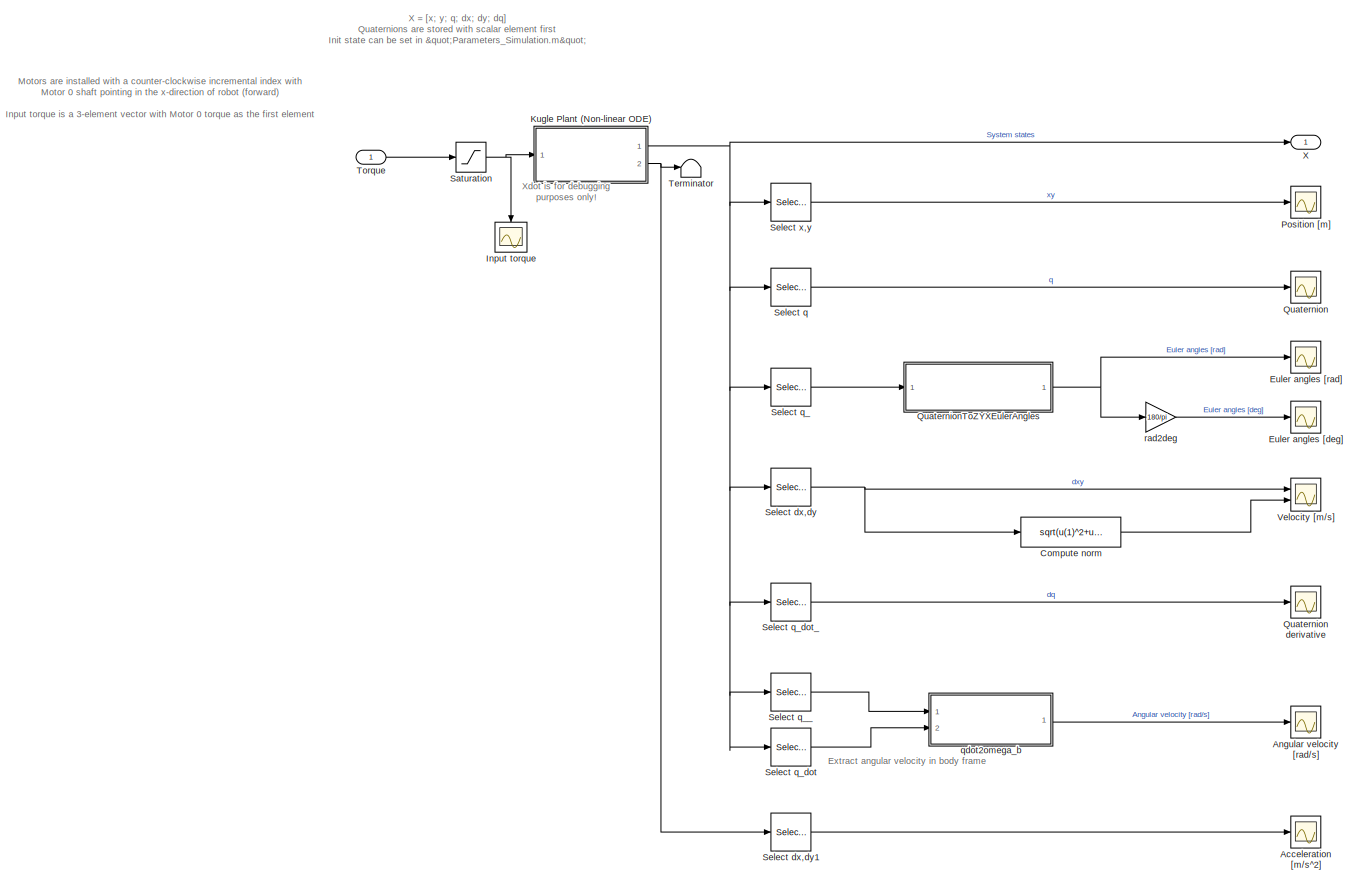
[diagram: root canvas - part 1/1, most of the canvas]
MODEL slx_b3144c18cfa1
KIND model
CONFIG AbsTol = auto
CONFIG EnableMultiTasking = off
CONFIG FixedStep = 1e-3
CONFIG InitFcn = Parameters_Simulation\nConstants_Kugle\nConstants_nominal
CONFIG MaxStep = 1e-2
CONFIG MinStep = auto
CONFIG PreLoadFcn = modelDir = fileparts(get_param(bdroot, 'FileName'));\naddpath(fullfile(modelDir,'../../Parameters'));\naddpath(fullfile(modelDir,'../../Model/generated'));\naddpath(fullfile(modelDir,'../../Misc'));\n\nParameters_Simulation\nConstants_Kugle\nConstants_nominal
CONFIG RelTol = 1e-5
CONFIG SampleTimeConstraint = Unconstrained
CONFIG Solver = VariableStepAuto
CONFIG SolverName = VariableStepAuto
CONFIG StartTime = 0.0
CONFIG StopTime = 25
BLOCK [Scope] Acceleration [m//s^2]
  Floating = off
  NumInputPorts = 1
  Ports = [1]
  ScopeSpecificationString = Simulink.scopes.TimeScopeBlockCfg('CurrentConfiguration', extmgr.ConfigurationSet(extmgr.Configuration('Core','General UI',true),extmgr.Configuration('Core','Source UI',true),extmgr.Configuration('Sources','WiredSimulink',true,'DataLoggingVariableName','ScopeData1'),extmgr.Configuration('Visuals','Time Domain',true,'SerializedDisplays',{struct('MinYLimReal','-0.07757','MaxYLimReal','0.00672','YLab...<+1520ch>
BLOCK [Scope] Angular velocity [rad//s]
  Floating = off
  NumInputPorts = 1
  Ports = [1]
  ScopeSpecificationString = Simulink.scopes.TimeScopeBlockCfg('CurrentConfiguration', extmgr.ConfigurationSet(extmgr.Configuration('Core','General UI',true),extmgr.Configuration('Core','Source UI',true),extmgr.Configuration('Sources','WiredSimulink',true,'DataLoggingVariableName','ScopeData5'),extmgr.Configuration('Visuals','Time Domain',true,'SerializedDisplays',{struct('MinYLimReal','-4.05915','MaxYLimReal','2.15683','YLab...<+1493ch>
BLOCK [Fcn] Compute norm
  Expr = sqrt(u(1)^2+u(2)^2)
BLOCK [Scope] Euler angles [deg]
  Floating = off
  NumInputPorts = 1
  Ports = [1]
  ScopeSpecificationString = Simulink.scopes.TimeScopeBlockCfg('CurrentConfiguration', extmgr.ConfigurationSet(extmgr.Configuration('Core','General UI',true),extmgr.Configuration('Core','Source UI',true),extmgr.Configuration('Sources','WiredSimulink',true,'DataLoggingVariableName','ScopeData1'),extmgr.Configuration('Visuals','Time Domain',true,'SerializedDisplays',{struct('MinYLimReal','-5.04759','MaxYLimReal','11.67195','YLa...<+1555ch>
BLOCK [Scope] Euler angles [rad]
  Floating = off
  NumInputPorts = 1
  Ports = [1]
  ScopeSpecificationString = Simulink.scopes.TimeScopeBlockCfg('CurrentConfiguration', extmgr.ConfigurationSet(extmgr.Configuration('Core','General UI',true),extmgr.Configuration('Core','Source UI',true),extmgr.Configuration('Sources','WiredSimulink',true,'DataLoggingVariableName','ScopeData2'),extmgr.Configuration('Visuals','Time Domain',true,'SerializedDisplays',{struct('MinYLimReal','-0.00196','MaxYLimReal','0.00406','YLab...<+1535ch>
BLOCK [Scope] Input torque
  Floating = off
  NumInputPorts = 1
  Ports = [1]
  ScopeSpecificationString = Simulink.scopes.TimeScopeBlockCfg('CurrentConfiguration', extmgr.ConfigurationSet(extmgr.Configuration('Core','General UI',true),extmgr.Configuration('Core','Source UI',true),extmgr.Configuration('Sources','WiredSimulink',true,'DataLoggingVariableName','ScopeData6'),extmgr.Configuration('Visuals','Time Domain',true,'SerializedDisplays',{struct('MinYLimReal','-1.54342','MaxYLimReal','1.47477','YLab...<+1595ch>
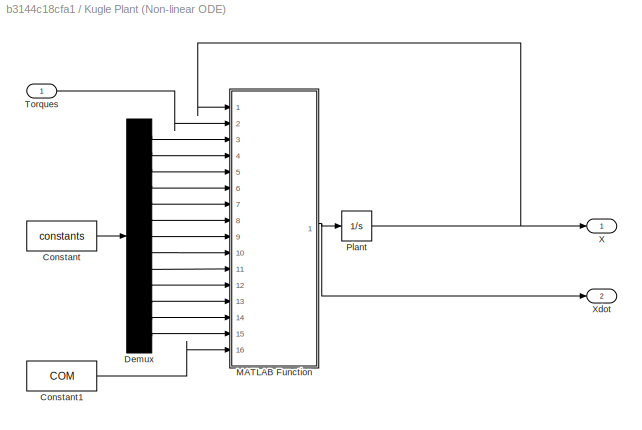
BLOCK [SubSystem] Kugle Plant (Non-linear ODE)
  Ports = [1, 2]
  RequestExecContextInheritance = off
BLOCK [Constant] Kugle Plant (Non-linear ODE)/Constant
  Value = constants
BLOCK [Constant] Kugle Plant (Non-linear ODE)/Constant1
  Value = COM
BLOCK [Demux] Kugle Plant (Non-linear ODE)/Demux
  DisplayOption = bar
  Outputs = 13
  Ports = [1, 13]
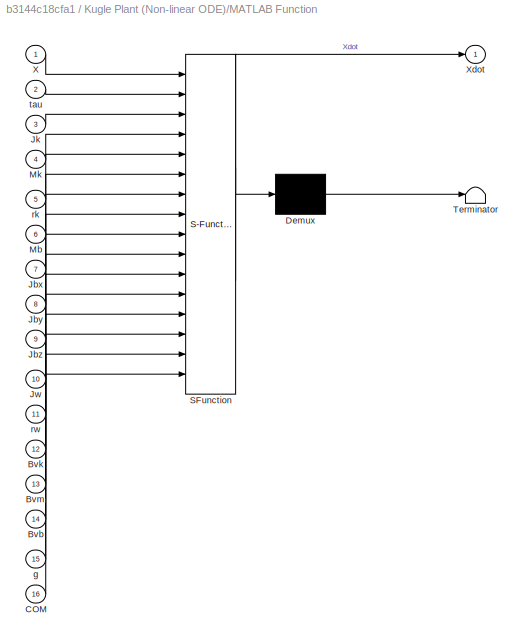
BLOCK [SubSystem] Kugle Plant (Non-linear ODE)/MATLAB Function
  ErrorFcn = Stateflow.Translate.translate
  PermitHierarchicalResolution = ExplicitOnly
  Ports = [16, 1]
  RequestExecContextInheritance = off
  SFBlockType = MATLAB Function
  TreatAsAtomicUnit = on
BLOCK [Demux] Kugle Plant (Non-linear ODE)/MATLAB Function/ Demux 
  Outputs = 1
  Ports = [1, 1]
BLOCK [S-Function] Kugle Plant (Non-linear ODE)/MATLAB Function/ SFunction 
  EnableBusSupport = on
  FunctionName = sf_sfun
  PortCounts = [16 2]
  Ports = [16, 2]
  SFcnIsStateOwnerBlock = off
  SFunctionDeploymentMode = off
  Tag = Stateflow S-Function KugleModel 2
BLOCK [Terminator] Kugle Plant (Non-linear ODE)/MATLAB Function/ Terminator 
BLOCK [Inport] Kugle Plant (Non-linear ODE)/MATLAB Function/Bvb
  IconDisplay = Port number
  Port = 14
BLOCK [Inport] Kugle Plant (Non-linear ODE)/MATLAB Function/Bvk
  IconDisplay = Port number
  Port = 12
BLOCK [Inport] Kugle Plant (Non-linear ODE)/MATLAB Function/Bvm
  IconDisplay = Port number
  Port = 13
BLOCK [Inport] Kugle Plant (Non-linear ODE)/MATLAB Function/COM
  IconDisplay = Port number
  Port = 16
BLOCK [Inport] Kugle Plant (Non-linear ODE)/MATLAB Function/Jbx
  IconDisplay = Port number
  Port = 7
BLOCK [Inport] Kugle Plant (Non-linear ODE)/MATLAB Function/Jby
  IconDisplay = Port number
  Port = 8
BLOCK [Inport] Kugle Plant (Non-linear ODE)/MATLAB Function/Jbz
  IconDisplay = Port number
  Port = 9
BLOCK [Inport] Kugle Plant (Non-linear ODE)/MATLAB Function/Jk
  IconDisplay = Port number
  Port = 3
BLOCK [Inport] Kugle Plant (Non-linear ODE)/MATLAB Function/Jw
  IconDisplay = Port number
  Port = 10
BLOCK [Inport] Kugle Plant (Non-linear ODE)/MATLAB Function/Mb
  IconDisplay = Port number
  Port = 6
BLOCK [Inport] Kugle Plant (Non-linear ODE)/MATLAB Function/Mk
  IconDisplay = Port number
  Port = 4
BLOCK [Inport] Kugle Plant (Non-linear ODE)/MATLAB Function/X
  IconDisplay = Port number
BLOCK [Outport] Kugle Plant (Non-linear ODE)/MATLAB Function/Xdot
  IconDisplay = Port number
BLOCK [Inport] Kugle Plant (Non-linear ODE)/MATLAB Function/g
  IconDisplay = Port number
  Port = 15
BLOCK [Inport] Kugle Plant (Non-linear ODE)/MATLAB Function/rk
  IconDisplay = Port number
  Port = 5
BLOCK [Inport] Kugle Plant (Non-linear ODE)/MATLAB Function/rw
  IconDisplay = Port number
  Port = 11
BLOCK [Inport] Kugle Plant (Non-linear ODE)/MATLAB Function/tau
  IconDisplay = Port number
  Port = 2
BLOCK [Integrator] Kugle Plant (Non-linear ODE)/Plant
  InitialCondition = x_init
  Ports = [1, 1]
BLOCK [Inport] Kugle Plant (Non-linear ODE)/Torques
  IconDisplay = Port number
BLOCK [Outport] Kugle Plant (Non-linear ODE)/X
  IconDisplay = Port number
BLOCK [Outport] Kugle Plant (Non-linear ODE)/Xdot
  IconDisplay = Port number
  Port = 2
BLOCK [Scope] Position [m]
  Floating = off
  NumInputPorts = 1
  Ports = [1]
  ScopeSpecificationString = Simulink.scopes.TimeScopeBlockCfg('CurrentConfiguration', extmgr.ConfigurationSet(extmgr.Configuration('Core','General UI',true),extmgr.Configuration('Core','Source UI',true),extmgr.Configuration('Sources','WiredSimulink',true),extmgr.Configuration('Visuals','Time Domain',true,'SerializedDisplays',{struct('MinYLimReal','-9.46197','MaxYLimReal','1.34726','YLabelReal','','MinYLimMag','0.00000','MaxY...<+1429ch>
BLOCK [Scope] Quaternion
  Floating = off
  NumInputPorts = 1
  Ports = [1]
  ScopeSpecificationString = Simulink.scopes.TimeScopeBlockCfg('CurrentConfiguration', extmgr.ConfigurationSet(extmgr.Configuration('Core','General UI',true),extmgr.Configuration('Core','Source UI',true),extmgr.Configuration('Sources','WiredSimulink',true,'DataLoggingVariableName','ScopeData1'),extmgr.Configuration('Visuals','Time Domain',true,'SerializedDisplays',{struct('MinYLimReal','-0.44421','MaxYLimReal','1.16047','YLab...<+1484ch>
BLOCK [Scope] Quaternion derivative
  Floating = off
  NumInputPorts = 1
  Ports = [1]
  ScopeSpecificationString = Simulink.scopes.TimeScopeBlockCfg('CurrentConfiguration', extmgr.ConfigurationSet(extmgr.Configuration('Core','General UI',true),extmgr.Configuration('Core','Source UI',true),extmgr.Configuration('Sources','WiredSimulink',true,'DataLoggingVariableName','ScopeData4'),extmgr.Configuration('Visuals','Time Domain',true,'SerializedDisplays',{struct('MinYLimReal','-1.99714','MaxYLimReal','1.05638','YLab...<+1492ch>
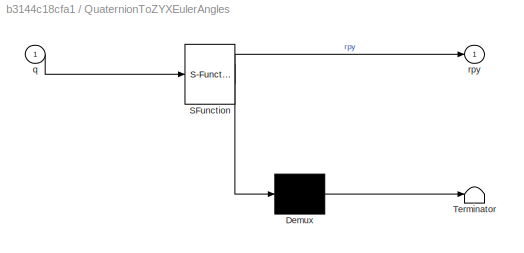
BLOCK [SubSystem] QuaternionToZYXEulerAngles
  ErrorFcn = Stateflow.Translate.translate
  PermitHierarchicalResolution = ExplicitOnly
  Ports = [1, 1]
  RequestExecContextInheritance = off
  SFBlockType = MATLAB Function
  TreatAsAtomicUnit = on
BLOCK [Demux] QuaternionToZYXEulerAngles/ Demux 
  Outputs = 1
  Ports = [1, 1]
BLOCK [S-Function] QuaternionToZYXEulerAngles/ SFunction 
  EnableBusSupport = on
  FunctionName = sf_sfun
  PortCounts = [1 2]
  Ports = [1, 2]
  SFcnIsStateOwnerBlock = off
  SFunctionDeploymentMode = off
  Tag = Stateflow S-Function KugleModel 1
BLOCK [Terminator] QuaternionToZYXEulerAngles/ Terminator 
BLOCK [Inport] QuaternionToZYXEulerAngles/q
  IconDisplay = Port number
BLOCK [Outport] QuaternionToZYXEulerAngles/rpy
  IconDisplay = Port number
BLOCK [Saturate] Saturation
  InputPortMap = u0
  LowerLimit = -max_output_torque
  Ports = [1, 1]
  UpperLimit = max_output_torque
BLOCK [Selector] Select dx,dy
  IndexOptions = Index vector (dialog)
  Indices = [7,8]
  InputPortWidth = 12
  OutputSizes = 1
  Ports = [1, 1]
BLOCK [Selector] Select dx,dy1
  IndexOptions = Index vector (dialog)
  Indices = [7,8]
  InputPortWidth = 12
  OutputSizes = 1
  Ports = [1, 1]
BLOCK [Selector] Select q
  IndexOptions = Index vector (dialog)
  Indices = [3,4,5,6]
  InputPortWidth = 12
  OutputSizes = 1
  Ports = [1, 1]
BLOCK [Selector] Select q_
  IndexOptions = Index vector (dialog)
  Indices = [3,4,5,6]
  InputPortWidth = 12
  OutputSizes = 1
  Ports = [1, 1]
BLOCK [Selector] Select q__
  IndexOptions = Index vector (dialog)
  Indices = [3,4,5,6]
  InputPortWidth = 12
  OutputSizes = 1
  Ports = [1, 1]
BLOCK [Selector] Select q_dot
  IndexOptions = Index vector (dialog)
  Indices = [9,10,11,12]
  InputPortWidth = 12
  OutputSizes = 1
  Ports = [1, 1]
BLOCK [Selector] Select q_dot_
  IndexOptions = Index vector (dialog)
  Indices = [9,10,11,12]
  InputPortWidth = 12
  OutputSizes = 1
  Ports = [1, 1]
BLOCK [Selector] Select x,y
  IndexOptions = Index vector (dialog)
  Indices = [1,2]
  InputPortWidth = 12
  OutputSizes = 1
  Ports = [1, 1]
BLOCK [Terminator] Terminator
BLOCK [Inport] Torque
  IconDisplay = Port number
  PortDimensions = 3
BLOCK [Scope] Velocity [m//s]
  Floating = off
  NumInputPorts = 2
  Ports = [2]
  ScopeSpecificationString = Simulink.scopes.TimeScopeBlockCfg('CurrentConfiguration', extmgr.ConfigurationSet(extmgr.Configuration('Core','General UI',true),extmgr.Configuration('Core','Source UI',true),extmgr.Configuration('Sources','WiredSimulink',true,'DataLoggingVariableName','ScopeData3'),extmgr.Configuration('Visuals','Time Domain',true,'SerializedDisplays',{struct('MinYLimReal','-2.57988','MaxYLimReal','2.61383','YLab...<+2214ch>
BLOCK [Outport] X
  IconDisplay = Port number
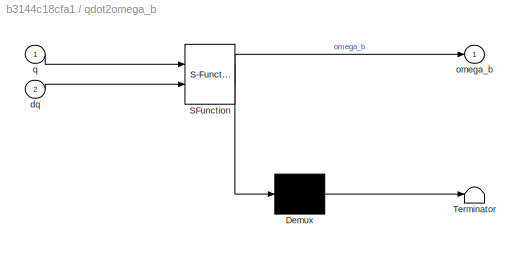
BLOCK [SubSystem] qdot2omega_b
  ErrorFcn = Stateflow.Translate.translate
  PermitHierarchicalResolution = ExplicitOnly
  Ports = [2, 1]
  RequestExecContextInheritance = off
  SFBlockType = MATLAB Function
  TreatAsAtomicUnit = on
BLOCK [Demux] qdot2omega_b/ Demux 
  Outputs = 1
  Ports = [1, 1]
BLOCK [S-Function] qdot2omega_b/ SFunction 
  EnableBusSupport = on
  FunctionName = sf_sfun
  PortCounts = [2 2]
  Ports = [2, 2]
  SFcnIsStateOwnerBlock = off
  SFunctionDeploymentMode = off
  Tag = Stateflow S-Function KugleModel 3
BLOCK [Terminator] qdot2omega_b/ Terminator 
BLOCK [Inport] qdot2omega_b/dq
  IconDisplay = Port number
  Port = 2
BLOCK [Outport] qdot2omega_b/omega_b
  IconDisplay = Port number
BLOCK [Inport] qdot2omega_b/q
  IconDisplay = Port number
BLOCK [Gain] rad2deg
  Gain = 180/pi
  OutDataTypeStr = Inherit: Inherit via internal rule
  ParamDataTypeStr = Inherit: Inherit via internal rule
  SaturateOnIntegerOverflow = off
ANNOTATION (root): X = [x; y; q; dx; dy; dq] Quaternions are stored with scalar element first Init state can be set in "Parameters_Simulation.m"
ANNOTATION (root): Xdot is for debugging purposes only!
ANNOTATION (root): Extract angular velocity in body frame
ANNOTATION (root): Motors are installed with a counter-clockwise incremental index with Motor 0 shaft pointing in the x-direction of robot (forward) Input torque is a 3-element vector with Motor 0 torque as the first element
LINE Compute norm:1 -> Velocity [m//s]:2
LINE Kugle Plant (Non-linear ODE)/Constant1:1 -> Kugle Plant (Non-linear ODE)/MATLAB Function:16
LINE Kugle Plant (Non-linear ODE)/Constant:1 -> Kugle Plant (Non-linear ODE)/Demux:1
LINE Kugle Plant (Non-linear ODE)/Demux:1 -> Kugle Plant (Non-linear ODE)/MATLAB Function:3
LINE Kugle Plant (Non-linear ODE)/Demux:10 -> Kugle Plant (Non-linear ODE)/MATLAB Function:12
LINE Kugle Plant (Non-linear ODE)/Demux:11 -> Kugle Plant (Non-linear ODE)/MATLAB Function:13
LINE Kugle Plant (Non-linear ODE)/Demux:12 -> Kugle Plant (Non-linear ODE)/MATLAB Function:14
LINE Kugle Plant (Non-linear ODE)/Demux:13 -> Kugle Plant (Non-linear ODE)/MATLAB Function:15
LINE Kugle Plant (Non-linear ODE)/Demux:2 -> Kugle Plant (Non-linear ODE)/MATLAB Function:4
LINE Kugle Plant (Non-linear ODE)/Demux:3 -> Kugle Plant (Non-linear ODE)/MATLAB Function:5
LINE Kugle Plant (Non-linear ODE)/Demux:4 -> Kugle Plant (Non-linear ODE)/MATLAB Function:6
LINE Kugle Plant (Non-linear ODE)/Demux:5 -> Kugle Plant (Non-linear ODE)/MATLAB Function:7
LINE Kugle Plant (Non-linear ODE)/Demux:6 -> Kugle Plant (Non-linear ODE)/MATLAB Function:8
LINE Kugle Plant (Non-linear ODE)/Demux:7 -> Kugle Plant (Non-linear ODE)/MATLAB Function:9
LINE Kugle Plant (Non-linear ODE)/Demux:8 -> Kugle Plant (Non-linear ODE)/MATLAB Function:10
LINE Kugle Plant (Non-linear ODE)/Demux:9 -> Kugle Plant (Non-linear ODE)/MATLAB Function:11
NET Kugle Plant (Non-linear ODE)/MATLAB Function:1 -> Kugle Plant (Non-linear ODE)/Plant:1, Kugle Plant (Non-linear ODE)/Xdot:1
NET Kugle Plant (Non-linear ODE)/Plant:1 -> Kugle Plant (Non-linear ODE)/MATLAB Function:1, Kugle Plant (Non-linear ODE)/X:1
LINE Kugle Plant (Non-linear ODE)/Torques:1 -> Kugle Plant (Non-linear ODE)/MATLAB Function:2
NET Kugle Plant (Non-linear ODE):1 -> Select dx,dy:1, Select q:1, Select q_:1, Select q__:1, Select q_dot:1, Select q_dot_:1, Select x,y:1, X:1
NET Kugle Plant (Non-linear ODE):2 -> Select dx,dy1:1, Terminator:1
NET QuaternionToZYXEulerAngles:1 -> Euler angles [rad]:1, rad2deg:1
NET Saturation:1 -> Input torque:1, Kugle Plant (Non-linear ODE):1
LINE Select dx,dy1:1 -> Acceleration [m//s^2]:1
NET Select dx,dy:1 -> Compute norm:1, Velocity [m//s]:1
LINE Select q:1 -> Quaternion:1
LINE Select q_:1 -> QuaternionToZYXEulerAngles:1
LINE Select q__:1 -> qdot2omega_b:1
LINE Select q_dot:1 -> qdot2omega_b:2
LINE Select q_dot_:1 -> Quaternion derivative:1
LINE Select x,y:1 -> Position [m]:1
LINE Torque:1 -> Saturation:1
LINE qdot2omega_b:1 -> Angular velocity [rad//s]:1
LINE rad2deg:1 -> Euler angles [deg]:1
note: NET lines group one-source signal fan-out (src -> all destinations, sorted); 1:1 wires keep LINE
CHART QuaternionToZYXEulerAngles states=1 transitions=1
  STATE_LABEL 'eML_blk_kernel()'
  STATE_LABEL 'SCRIPT:\nfunction rpy = Quaternion2ZYXEulerAngles(q)\n    rpy = Quaternion2ZYXEulerAngles(q);\nend'
CHART Kugle Plant
(Non-linear ODE)/MATLAB Function states=1 transitions=1
  STATE_LABEL 'eML_blk_kernel()'
  STATE_LABEL 'SCRIPT:\nfunction Xdot = Kugle_ODE(X,tau,Jk,Mk,rk,Mb,Jbx,Jby,Jbz,Jw,rw,Bvk,Bvm,Bvb,g,COM)\n\nbeta = 1; % regularization enabled for ODE (plant)\n\nx = X(1);\ny = X(2);\nq1 = X(3);\nq2 = X(4);\nq3 = X(5);\nq4 = X(6);\n\ndx = X(7);\ndy = X(8);\ndq1 = X(9);\ndq2 = X(10);\ndq3 = X(11);\ndq4 = X(12);\n\ndchi = reshape(X(7:12), 6, 1);\n\nCOM_X = COM(1);\nCOM_Y = COM(2);\nCOM_Z = COM(3);\n\nM = mass(COM_X,COM_Y,COM_Z,Jbx,Jby,Jbz...<+355ch>'
CHART qdot2omega_b states=1 transitions=1
  STATE_LABEL 'eML_blk_kernel()'
  STATE_LABEL 'SCRIPT:\nfunction omega_b = qdot2omega_b(q, dq)\n    omega_b = qdot2omega_b(q, dq);\nend'
